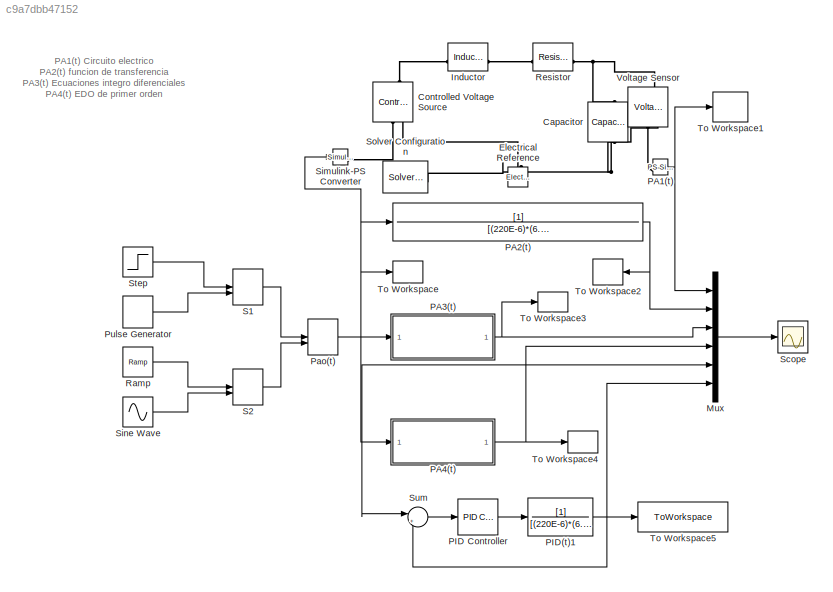
MODEL slx_c9a7dbb47152
KIND model
CONFIG AbsTol = auto
CONFIG EnableMultiTasking = off
CONFIG FixedStep = auto
CONFIG MaxStep = 1E-3
CONFIG MinStep = auto
CONFIG RelTol = 1e-3
CONFIG SampleTimeConstraint = Unconstrained
CONFIG SolverName = ode23t
CONFIG StartTime = 0.0
CONFIG StopTime = 10.0
BLOCK [Reference] Capacitor  REF=ee_lib/Passive/Capacitor
  NameLocation = left
  SourceBlock = ee_lib/Passive/Capacitor
  SourceType = Capacitor
BLOCK [Reference] Controlled Voltage Source  REF=fl_lib/Electrical/Electrical Sources/Controlled Voltage
Source
  NameLocation = right
  SourceBlock = fl_lib/Electrical/Electrical Sources/Controlled Voltage\nSource
  SourceType = Controlled Voltage\nSource
BLOCK [Reference] Electrical Reference  REF=fl_lib/Electrical/Electrical Elements/Electrical Reference
  LibrarySourceBlock = ee_lib/Connectors &\nReferences/Electrical Reference
  NameLocation = right
  SourceBlock = fl_lib/Electrical/Electrical Elements/Electrical Reference
  SourceType = Electrical Reference
BLOCK [Reference] Inductor  REF=ee_lib/Passive/Inductor
  SourceBlock = ee_lib/Passive/Inductor
  SourceType = Inductor
BLOCK [Mux] Mux
  DisplayOption = bar
  Inputs = 6
BLOCK [Reference] PA1(t)  REF=nesl_utility/PS-Simulink
Converter
  SourceBlock = nesl_utility/PS-Simulink\nConverter
  SourceType = PS-Simulink\nConverter
BLOCK [TransferFcn] PA2(t)
  Denominator = [(220E-6)*(6.8E-3),(220E-6)*(10E3),1]
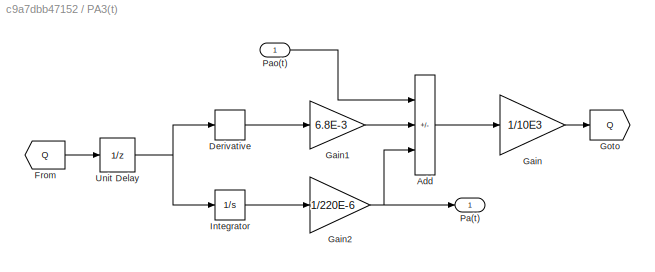
BLOCK [SubSystem] PA3(t)
BLOCK [Sum] PA3(t)/Add
  IconShape = rectangular
  Inputs = +--
BLOCK [Derivative] PA3(t)/Derivative
BLOCK [From] PA3(t)/From
  GotoTag = Q
BLOCK [Gain] PA3(t)/Gain
  Gain = 1/10E3
BLOCK [Gain] PA3(t)/Gain1
  Gain = 6.8E-3
BLOCK [Gain] PA3(t)/Gain2
  Gain = 1/220E-6
BLOCK [Goto] PA3(t)/Goto
  GotoTag = Q
BLOCK [Integrator] PA3(t)/Integrator
BLOCK [Outport] PA3(t)/Pa(t)
BLOCK [Inport] PA3(t)/Pao(t)
BLOCK [UnitDelay] PA3(t)/Unit Delay
  HasFrameUpgradeWarning = on
  SampleTime = -1
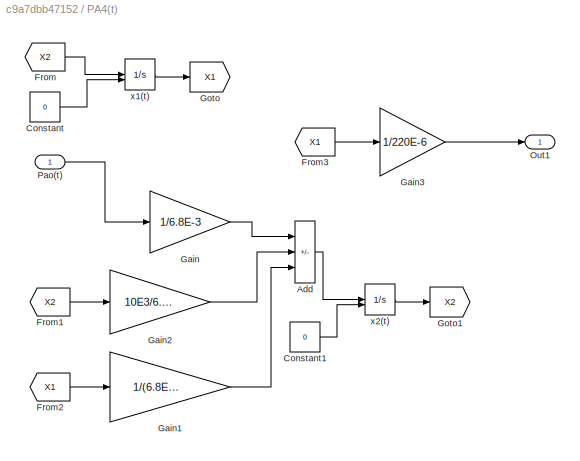
BLOCK [SubSystem] PA4(t)
BLOCK [Sum] PA4(t)/Add
  IconShape = rectangular
  Inputs = +--
BLOCK [Constant] PA4(t)/Constant
  Value = 0
BLOCK [Constant] PA4(t)/Constant1
  Value = 0
BLOCK [From] PA4(t)/From
  GotoTag = X2
BLOCK [From] PA4(t)/From1
  GotoTag = X2
BLOCK [From] PA4(t)/From2
  GotoTag = X1
BLOCK [From] PA4(t)/From3
  GotoTag = X1
BLOCK [Gain] PA4(t)/Gain
  Gain = 1/6.8E-3
BLOCK [Gain] PA4(t)/Gain1
  Gain = 1/(6.8E-3*220E-6)
BLOCK [Gain] PA4(t)/Gain2
  Gain = 10E3/6.8E-3
BLOCK [Gain] PA4(t)/Gain3
  Gain = 1/220E-6
BLOCK [Goto] PA4(t)/Goto
  GotoTag = X1
BLOCK [Goto] PA4(t)/Goto1
  GotoTag = X2
BLOCK [Outport] PA4(t)/Out1
BLOCK [Inport] PA4(t)/Pao(t)
BLOCK [Integrator] PA4(t)/x1(t)
  InitialConditionSource = external
BLOCK [Integrator] PA4(t)/x2(t)
  InitialConditionSource = external
BLOCK [Reference] PID Controller  REF=slpidlib/PID Controller
  SourceBlock = slpidlib/PID Controller
  SourceType = PID 1dof
BLOCK [TransferFcn] PID(t)1
  Denominator = [(220E-6)*(6.8E-3),(220E-6)*(10E3),1]
BLOCK [ManualSwitch] Pao(t)
  CurrentSetting = 0
BLOCK [DiscretePulseGenerator] Pulse Generator
  Period = 10
  PhaseDelay = 1
  PulseType = Time based
  PulseWidth = 10
BLOCK [Reference] Ramp  REF=simulink/Sources/Ramp
  SourceBlock = simulink/Sources/Ramp
  SourceType = Ramp
BLOCK [Reference] Resistor  REF=ee_lib/Passive/Resistor
  SourceBlock = ee_lib/Passive/Resistor
  SourceType = Resistor
BLOCK [ManualSwitch] S1
  CurrentSetting = 0
BLOCK [ManualSwitch] S2
  CurrentSetting = 0
BLOCK [Scope] Scope
  Floating = off
  NumInputPorts = 1
  ScopeSpecificationString = Simulink.scopes.TimeScopeBlockCfg('CurrentConfiguration', extmgr.ConfigurationSet(extmgr.Configuration('Core','General UI',true,'FigureColor',[1 1 1]),extmgr.Configuration('Core','Source UI',true),extmgr.Configuration('Sources','WiredSimulink',true),extmgr.Configuration('Visuals','Time Domain',true,'SerializedDisplays',{struct('MinYLimReal','-0.31368','MaxYLimReal','1.2817','YLabelReal','','MinYLi...<+2196ch>
BLOCK [Reference] Simulink-PS Converter  REF=nesl_utility/Simulink-PS
Converter
  SourceBlock = nesl_utility/Simulink-PS\nConverter
  SourceType = Simulink-PS\nConverter
BLOCK [Sin] Sine Wave
  Frequency = pi/2
  SampleTime = 0
BLOCK [Reference] Solver Configuration  REF=nesl_utility/Solver
Configuration
  SourceBlock = nesl_utility/Solver\nConfiguration
  SourceType = Solver\nConfiguration
BLOCK [Step] Step
  Before = 1
  SampleTime = 0
  Time = 0
BLOCK [Sum] Sum
  Inputs = |+-
BLOCK [ToWorkspace] To Workspace
  FixptAsFi = on
  MaxDataPoints = inf
  SampleTime = -1
  VariableName = Pao
BLOCK [ToWorkspace] To Workspace1
  FixptAsFi = on
  MaxDataPoints = inf
  SampleTime = -1
  VariableName = PA1
BLOCK [ToWorkspace] To Workspace2
  FixptAsFi = on
  MaxDataPoints = inf
  SampleTime = -1
  VariableName = PA2
BLOCK [ToWorkspace] To Workspace3
  FixptAsFi = on
  MaxDataPoints = inf
  SampleTime = -1
  VariableName = PA3
BLOCK [ToWorkspace] To Workspace4
  FixptAsFi = on
  MaxDataPoints = inf
  SampleTime = -1
  VariableName = PA4
BLOCK [ToWorkspace] To Workspace5
  FixptAsFi = on
  MaxDataPoints = inf
  SampleTime = -1
  VariableName = PID
BLOCK [Reference] Voltage Sensor  REF=fl_lib/Electrical/Electrical Sensors/Voltage Sensor
  NameLocation = right
  SourceBlock = fl_lib/Electrical/Electrical Sensors/Voltage Sensor
  SourceType = Voltage Sensor
ANNOTATION (root): PA1(t) Circuito electrico PA2(t) funcion de transferencia PA3(t) Ecuaciones integro diferenciales PA4(t) EDO de primer orden
LINE Mux:1 -> Scope:1
NET PA1(t):1 -> Mux:1, To Workspace1:1
NET PA2(t):1 -> Mux:2, To Workspace2:1
LINE PA3(t)/Add:1 -> PA3(t)/Gain:1
LINE PA3(t)/Derivative:1 -> PA3(t)/Gain1:1
LINE PA3(t)/From:1 -> PA3(t)/Unit Delay:1
LINE PA3(t)/Gain1:1 -> PA3(t)/Add:2
NET PA3(t)/Gain2:1 -> PA3(t)/Add:3, PA3(t)/Pa(t):1
LINE PA3(t)/Gain:1 -> PA3(t)/Goto:1
LINE PA3(t)/Integrator:1 -> PA3(t)/Gain2:1
LINE PA3(t)/Pao(t):1 -> PA3(t)/Add:1
NET PA3(t)/Unit Delay:1 -> PA3(t)/Derivative:1, PA3(t)/Integrator:1
NET PA3(t):1 -> Mux:3, To Workspace3:1
LINE PA4(t)/Add:1 -> PA4(t)/x2(t):1
LINE PA4(t)/Constant1:1 -> PA4(t)/x2(t):2
LINE PA4(t)/Constant:1 -> PA4(t)/x1(t):2
LINE PA4(t)/From1:1 -> PA4(t)/Gain2:1
LINE PA4(t)/From2:1 -> PA4(t)/Gain1:1
LINE PA4(t)/From3:1 -> PA4(t)/Gain3:1
LINE PA4(t)/From:1 -> PA4(t)/x1(t):1
LINE PA4(t)/Gain1:1 -> PA4(t)/Add:3
LINE PA4(t)/Gain2:1 -> PA4(t)/Add:2
LINE PA4(t)/Gain3:1 -> PA4(t)/Out1:1
LINE PA4(t)/Gain:1 -> PA4(t)/Add:1
LINE PA4(t)/Pao(t):1 -> PA4(t)/Gain:1
LINE PA4(t)/x1(t):1 -> PA4(t)/Goto:1
LINE PA4(t)/x2(t):1 -> PA4(t)/Goto1:1
NET PA4(t):1 -> Mux:4, To Workspace4:1
LINE PID Controller:1 -> PID(t)1:1
NET PID(t)1:1 -> Mux:6, Sum:2, To Workspace5:1
NET Pao(t):1 -> Mux:5, PA2(t):1, PA3(t):1, PA4(t):1, Simulink-PS Converter:1, Sum:1, To Workspace:1
LINE Pulse Generator:1 -> S1:2
LINE Ramp:1 -> S2:1
LINE S1:1 -> Pao(t):1
LINE S2:1 -> Pao(t):2
LINE Sine Wave:1 -> S2:2
LINE Step:1 -> S1:1
LINE Sum:1 -> PID Controller:1
PNET net1: Capacitor:LConn1 -- Resistor:RConn1 -- Voltage Sensor:LConn1
PNET net2: Capacitor:RConn1 -- Controlled Voltage Source:RConn2 -- Electrical Reference:LConn1 -- Solver Configuration:RConn1 -- Voltage Sensor:RConn2
PLINE Controlled Voltage Source:LConn1 -- Inductor:LConn1
PLINE Controlled Voltage Source:RConn1 -- Simulink-PS Converter:RConn1
PLINE Inductor:RConn1 -- Resistor:LConn1
PLINE PA1(t):LConn1 -- Voltage Sensor:RConn1
note: NET lines group one-source signal fan-out (src -> all destinations, sorted); 1:1 wires keep LINE; PNET lines group multi-terminal physical nets as a canonical sorted terminal list (undirected conserving connections); 2-terminal nets keep the pairwise PLINE form
